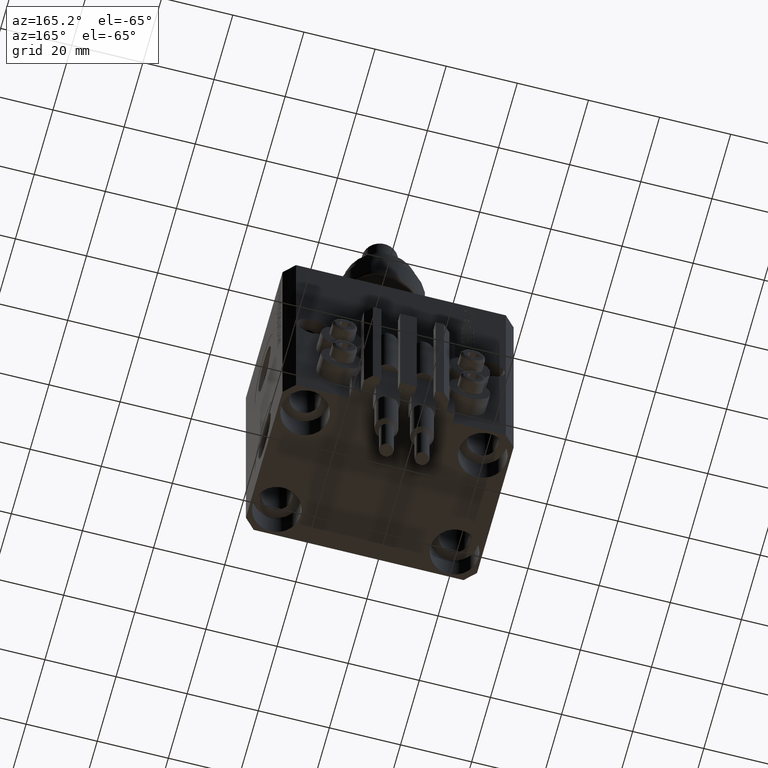
[diagram: clean part render]
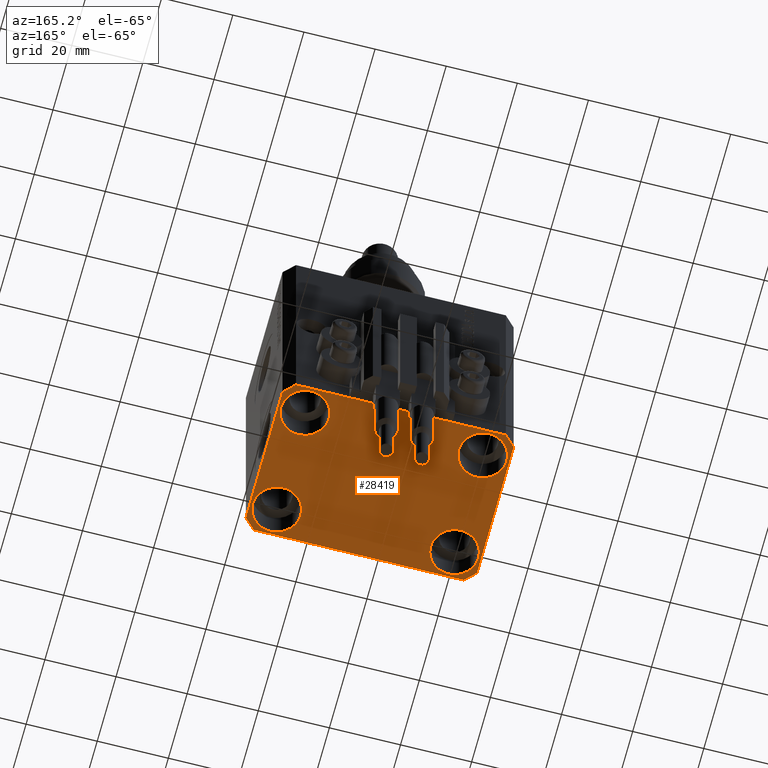
[diagram: same view with one face highlighted and labeled with its STEP entity id]
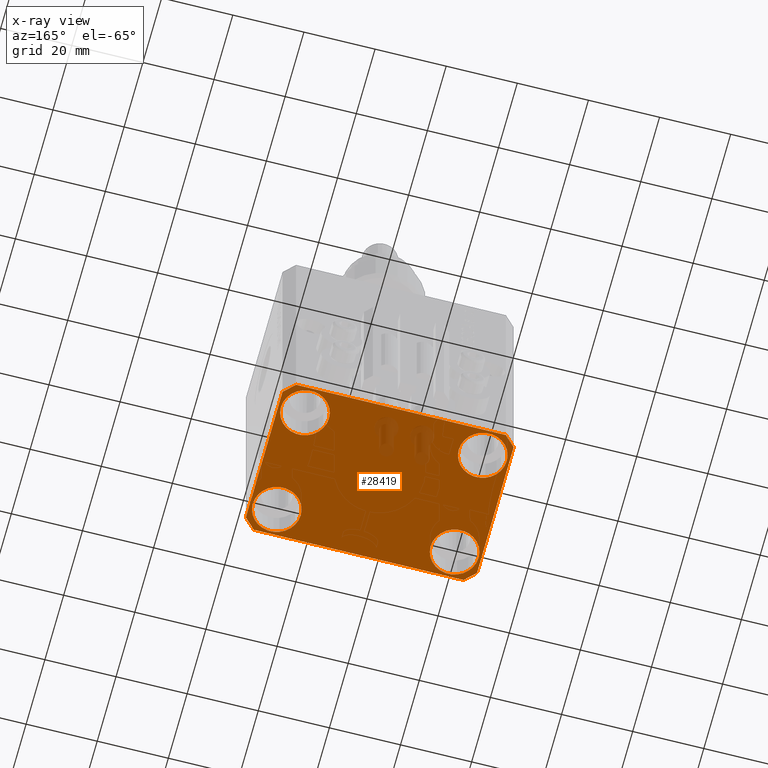
[diagram: x-ray of the same camera — body ghosted, the highlighted face saturated]
A machine part, auxiliary view. The second image highlights one B-rep face of the part: STEP entity #28419.
The next image is the same camera in x-ray: the body ghosted, the highlighted face saturated — about 5% of this face is hidden behind the body in this view.
In plain terms, the highlighted planar face has unit normal (0, 0, 1).
Its self-contained STEP definition (entity closure, byte-faithful):
#45 = CARTESIAN_POINT ( 'NONE',  ( 0.000000000000000000, 0.000000000000000000, -77.00000000000000000 ) ) ;
#546 = DIRECTION ( 'NONE',  ( 1.000000000000000000, 0.000000000000000000, -0.000000000000000000 ) ) ;
#956 = EDGE_CURVE ( 'NONE', #17662, #29281, #48823, .T. ) ;
#1086 = CARTESIAN_POINT ( 'NONE',  ( -32.49999999999650413, 19.49999999999949907, -77.00000000000000000 ) ) ;
#1094 = DIRECTION ( 'NONE',  ( -0.7071067811865474617, -0.7071067811865474617, 0.000000000000000000 ) ) ;
#1244 = EDGE_CURVE ( 'NONE', #9474, #32454, #38699, .T. ) ;
#1461 = CARTESIAN_POINT ( 'NONE',  ( -29.49999999999650413, 22.49999999999949907, -77.00000000000000000 ) ) ;
#1547 = AXIS2_PLACEMENT_3D ( 'NONE', #45, #20279, #546 ) ;
#1608 = CARTESIAN_POINT ( 'NONE',  ( -29.49999999999650413, 22.49999999999949907, -77.00000000000000000 ) ) ;
#2036 = CARTESIAN_POINT ( 'NONE',  ( 32.49999999999702993, 19.49999999999945999, -77.00000000000000000 ) ) ;
#2237 = DIRECTION ( 'NONE',  ( -0.000000000000000000, -0.000000000000000000, 1.000000000000000000 ) ) ;
#2881 = EDGE_CURVE ( 'NONE', #21394, #44038, #40609, .T. ) ;
#3050 = CARTESIAN_POINT ( 'NONE',  ( -32.49999999999650413, -19.49999999999949907, -77.00000000000000000 ) ) ;
#3189 = VERTEX_POINT ( 'NONE', #25179 ) ;
#3313 = LINE ( 'NONE', #6948, #11062 ) ;
#3574 = AXIS2_PLACEMENT_3D ( 'NONE', #35310, #32428, #12192 ) ;
#6428 = LINE ( 'NONE', #2036, #40658 ) ;
#6644 = DIRECTION ( 'NONE',  ( 1.000000000000000000, 0.000000000000000000, 0.000000000000000000 ) ) ;
#6838 = AXIS2_PLACEMENT_3D ( 'NONE', #41606, #33806, #33557 ) ;
#6948 = CARTESIAN_POINT ( 'NONE',  ( -32.49999999999650413, 19.49999999999949907, -77.00000000000000000 ) ) ;
#7407 = EDGE_CURVE ( 'NONE', #12128, #10575, #19665, .T. ) ;
#7562 = ORIENTED_EDGE ( 'NONE', *, *, #14547, .T. ) ;
#7670 = ORIENTED_EDGE ( 'NONE', *, *, #50550, .T. ) ;
#8112 = AXIS2_PLACEMENT_3D ( 'NONE', #10536, #2237, #6644 ) ;
#8657 = AXIS2_PLACEMENT_3D ( 'NONE', #15118, #32740, #48331 ) ;
#8911 = CARTESIAN_POINT ( 'NONE',  ( -32.49999999999650413, -19.49999999999949907, -77.00000000000000000 ) ) ;
#8948 = CARTESIAN_POINT ( 'NONE',  ( 29.49999999999707967, 22.49999999999951328, -77.00000000000000000 ) ) ;
#9474 = VERTEX_POINT ( 'NONE', #8948 ) ;
#10253 = CIRCLE ( 'NONE', #47578, 6.749999999958452790 ) ;
#10351 = EDGE_CURVE ( 'NONE', #44038, #21394, #20981, .T. ) ;
#10536 = CARTESIAN_POINT ( 'NONE',  ( -25.00000000000000355, -15.00000000000000000, -77.00000000000000000 ) ) ;
#10575 = VERTEX_POINT ( 'NONE', #49787 ) ;
#11018 = CARTESIAN_POINT ( 'NONE',  ( 32.49999999999702993, 19.49999999999945999, -77.00000000000000000 ) ) ;
#11028 = ORIENTED_EDGE ( 'NONE', *, *, #38486, .F. ) ;
#11062 = VECTOR ( 'NONE', #19147, 1000.000000000000000 ) ;
#11679 = DIRECTION ( 'NONE',  ( 1.000000000000000000, 1.176083712526788232E-16, 0.000000000000000000 ) ) ;
#11991 = FACE_BOUND ( 'NONE', #22053, .T. ) ;
#12118 = CARTESIAN_POINT ( 'NONE',  ( 31.74999999995845101, 15.00000000000000888, -77.00000000000000000 ) ) ;
#12128 = VERTEX_POINT ( 'NONE', #8911 ) ;
#12192 = DIRECTION ( 'NONE',  ( 1.000000000000000000, 0.000000000000000000, 0.000000000000000000 ) ) ;
#12490 = DIRECTION ( 'NONE',  ( -0.000000000000000000, -0.000000000000000000, 1.000000000000000000 ) ) ;
#13291 = LINE ( 'NONE', #1608, #47303 ) ;
#14547 = EDGE_CURVE ( 'NONE', #16539, #3189, #10253, .T. ) ;
#14671 = ORIENTED_EDGE ( 'NONE', *, *, #956, .T. ) ;
#14747 = CIRCLE ( 'NONE', #50413, 6.750000000041541881 ) ;
#14801 = CARTESIAN_POINT ( 'NONE',  ( 29.49999999999707967, 22.49999999999951328, -77.00000000000000000 ) ) ;
#14971 = CARTESIAN_POINT ( 'NONE',  ( -31.75000000004154899, -15.00000000000000000, -77.00000000000000000 ) ) ;
#15118 = CARTESIAN_POINT ( 'NONE',  ( -25.00000000000000355, 15.00000000000000000, -77.00000000000000000 ) ) ;
#15589 = DIRECTION ( 'NONE',  ( -1.000000000000000000, -2.352167425053553784E-16, 0.000000000000000000 ) ) ;
#15635 = DIRECTION ( 'NONE',  ( -0.000000000000000000, -0.000000000000000000, 1.000000000000000000 ) ) ;
#15919 = CARTESIAN_POINT ( 'NONE',  ( 32.49999999999651124, -19.49999999999949196, -77.00000000000000000 ) ) ;
#16399 = CARTESIAN_POINT ( 'NONE',  ( 24.99999999999999645, 15.00000000000000888, -77.00000000000000000 ) ) ;
#16539 = VERTEX_POINT ( 'NONE', #12118 ) ;
#16723 = VERTEX_POINT ( 'NONE', #11018 ) ;
#17582 = CIRCLE ( 'NONE', #6838, 6.749999999958452790 ) ;
#17662 = VERTEX_POINT ( 'NONE', #36468 ) ;
#18822 = ORIENTED_EDGE ( 'NONE', *, *, #2881, .T. ) ;
#18880 = DIRECTION ( 'NONE',  ( 0.7071067811865474617, -0.7071067811865474617, 0.000000000000000000 ) ) ;
#19075 = EDGE_LOOP ( 'NONE', ( #14671, #33818 ) ) ;
#19147 = DIRECTION ( 'NONE',  ( 0.000000000000000000, -1.000000000000000000, 0.000000000000000000 ) ) ;
#19665 = LINE ( 'NONE', #3050, #34964 ) ;
#19760 = DIRECTION ( 'NONE',  ( 0.7071067811865483499, 0.7071067811865466846, 0.000000000000000000 ) ) ;
#19764 = FACE_BOUND ( 'NONE', #19075, .T. ) ;
#20279 = DIRECTION ( 'NONE',  ( 0.000000000000000000, 0.000000000000000000, 1.000000000000000000 ) ) ;
#20981 = CIRCLE ( 'NONE', #3574, 6.749999999977465137 ) ;
#21394 = VERTEX_POINT ( 'NONE', #38897 ) ;
#22007 = EDGE_CURVE ( 'NONE', #43342, #16723, #43961, .T. ) ;
#22053 = EDGE_LOOP ( 'NONE', ( #39711, #7562 ) ) ;
#22143 = CARTESIAN_POINT ( 'NONE',  ( -25.00000000000000355, 15.00000000000000000, -77.00000000000000000 ) ) ;
#22336 = CARTESIAN_POINT ( 'NONE',  ( -18.24999999995845812, -15.00000000000000000, -77.00000000000000000 ) ) ;
#22402 = DIRECTION ( 'NONE',  ( -0.000000000000000000, -0.000000000000000000, 1.000000000000000000 ) ) ;
#22951 = VECTOR ( 'NONE', #47605, 1000.000000000000000 ) ;
#23359 = ORIENTED_EDGE ( 'NONE', *, *, #7407, .F. ) ;
#23573 = CIRCLE ( 'NONE', #8657, 6.750000000022533087 ) ;
#24202 = DIRECTION ( 'NONE',  ( 1.000000000000000000, 0.000000000000000000, 0.000000000000000000 ) ) ;
#24685 = FACE_BOUND ( 'NONE', #33231, .T. ) ;
#25179 = CARTESIAN_POINT ( 'NONE',  ( 18.25000000004154543, 15.00000000000000888, -77.00000000000000000 ) ) ;
#25534 = DIRECTION ( 'NONE',  ( 1.000000000000000000, 0.000000000000000000, 0.000000000000000000 ) ) ;
#25817 = CARTESIAN_POINT ( 'NONE',  ( 25.00000000000000355, -15.00000000000000000, -77.00000000000000000 ) ) ;
#26876 = EDGE_CURVE ( 'NONE', #31854, #41037, #33823, .T. ) ;
#27551 = VECTOR ( 'NONE', #19760, 1000.000000000000000 ) ;
#27833 = DIRECTION ( 'NONE',  ( 1.000000000000000000, 0.000000000000000000, 0.000000000000000000 ) ) ;
#27839 = PLANE ( 'NONE',  #1547 ) ;
#28419 = ADVANCED_FACE ( 'NONE', ( #24685, #39515, #11991, #19764, #35618 ), #27839, .F. ) ;
#29281 = VERTEX_POINT ( 'NONE', #40049 ) ;
#29724 = EDGE_LOOP ( 'NONE', ( #47713, #18822 ) ) ;
#30879 = CARTESIAN_POINT ( 'NONE',  ( 29.49999999999650413, -22.49999999999949196, -77.00000000000000000 ) ) ;
#31671 = LINE ( 'NONE', #47251, #34261 ) ;
#31854 = VERTEX_POINT ( 'NONE', #22336 ) ;
#32095 = EDGE_CURVE ( 'NONE', #16723, #9474, #6428, .T. ) ;
#32329 = EDGE_LOOP ( 'NONE', ( #38552, #37468, #47128, #11028, #40714, #23359, #48711, #41919 ) ) ;
#32428 = DIRECTION ( 'NONE',  ( -0.000000000000000000, -0.000000000000000000, 1.000000000000000000 ) ) ;
#32454 = VERTEX_POINT ( 'NONE', #1461 ) ;
#32471 = CARTESIAN_POINT ( 'NONE',  ( 29.49999999999650413, -22.49999999999949196, -77.00000000000000000 ) ) ;
#32740 = DIRECTION ( 'NONE',  ( -0.000000000000000000, -0.000000000000000000, 1.000000000000000000 ) ) ;
#32885 = VERTEX_POINT ( 'NONE', #1086 ) ;
#33231 = EDGE_LOOP ( 'NONE', ( #7670, #38342 ) ) ;
#33557 = DIRECTION ( 'NONE',  ( 1.000000000000000000, 0.000000000000000000, 0.000000000000000000 ) ) ;
#33603 = DIRECTION ( 'NONE',  ( 1.000000000000000000, 0.000000000000000000, 0.000000000000000000 ) ) ;
#33806 = DIRECTION ( 'NONE',  ( -0.000000000000000000, -0.000000000000000000, 1.000000000000000000 ) ) ;
#33818 = ORIENTED_EDGE ( 'NONE', *, *, #43890, .T. ) ;
#33823 = CIRCLE ( 'NONE', #8112, 6.750000000041541881 ) ;
#34240 = EDGE_CURVE ( 'NONE', #32454, #32885, #13291, .T. ) ;
#34261 = VECTOR ( 'NONE', #11679, 1000.000000000000000 ) ;
#34267 = CARTESIAN_POINT ( 'NONE',  ( 18.25000000002253842, -15.00000000000000000, -77.00000000000000000 ) ) ;
#34387 = CARTESIAN_POINT ( 'NONE',  ( 32.49999999999651124, -19.49999999999949196, -77.00000000000000000 ) ) ;
#34964 = VECTOR ( 'NONE', #18880, 1000.000000000000114 ) ;
#35310 = CARTESIAN_POINT ( 'NONE',  ( 25.00000000000000355, -15.00000000000000000, -77.00000000000000000 ) ) ;
#35579 = VECTOR ( 'NONE', #15589, 1000.000000000000000 ) ;
#35618 = FACE_OUTER_BOUND ( 'NONE', #32329, .T. ) ;
#36468 = CARTESIAN_POINT ( 'NONE',  ( -31.75000000002253842, 15.00000000000000000, -77.00000000000000000 ) ) ;
#36993 = DIRECTION ( 'NONE',  ( -0.000000000000000000, -0.000000000000000000, 1.000000000000000000 ) ) ;
#37468 = ORIENTED_EDGE ( 'NONE', *, *, #32095, .F. ) ;
#38111 = DIRECTION ( 'NONE',  ( -0.7071067811865352493, 0.7071067811865597852, 0.000000000000000000 ) ) ;
#38342 = ORIENTED_EDGE ( 'NONE', *, *, #26876, .T. ) ;
#38486 = EDGE_CURVE ( 'NONE', #39589, #43342, #48559, .T. ) ;
#38552 = ORIENTED_EDGE ( 'NONE', *, *, #1244, .F. ) ;
#38699 = LINE ( 'NONE', #14801, #35579 ) ;
#38897 = CARTESIAN_POINT ( 'NONE',  ( 31.74999999997746869, -15.00000000000000000, -77.00000000000000000 ) ) ;
#39225 = EDGE_CURVE ( 'NONE', #3189, #16539, #17582, .T. ) ;
#39515 = FACE_BOUND ( 'NONE', #29724, .T. ) ;
#39589 = VERTEX_POINT ( 'NONE', #30879 ) ;
#39711 = ORIENTED_EDGE ( 'NONE', *, *, #39225, .T. ) ;
#40049 = CARTESIAN_POINT ( 'NONE',  ( -18.24999999997747224, 15.00000000000000000, -77.00000000000000000 ) ) ;
#40609 = CIRCLE ( 'NONE', #46415, 6.749999999977465137 ) ;
#40658 = VECTOR ( 'NONE', #38111, 1000.000000000000000 ) ;
#40714 = ORIENTED_EDGE ( 'NONE', *, *, #41647, .F. ) ;
#41037 = VERTEX_POINT ( 'NONE', #14971 ) ;
#41606 = CARTESIAN_POINT ( 'NONE',  ( 24.99999999999999645, 15.00000000000000888, -77.00000000000000000 ) ) ;
#41647 = EDGE_CURVE ( 'NONE', #10575, #39589, #31671, .T. ) ;
#41919 = ORIENTED_EDGE ( 'NONE', *, *, #34240, .F. ) ;
#43342 = VERTEX_POINT ( 'NONE', #34387 ) ;
#43890 = EDGE_CURVE ( 'NONE', #29281, #17662, #23573, .T. ) ;
#43961 = LINE ( 'NONE', #15919, #22951 ) ;
#44038 = VERTEX_POINT ( 'NONE', #34267 ) ;
#44673 = AXIS2_PLACEMENT_3D ( 'NONE', #22143, #22402, #25534 ) ;
#45327 = EDGE_CURVE ( 'NONE', #32885, #12128, #3313, .T. ) ;
#46415 = AXIS2_PLACEMENT_3D ( 'NONE', #25817, #36993, #33603 ) ;
#47128 = ORIENTED_EDGE ( 'NONE', *, *, #22007, .F. ) ;
#47251 = CARTESIAN_POINT ( 'NONE',  ( -29.49999999999650413, -22.49999999999949907, -77.00000000000000000 ) ) ;
#47303 = VECTOR ( 'NONE', #1094, 1000.000000000000114 ) ;
#47558 = CARTESIAN_POINT ( 'NONE',  ( -25.00000000000000355, -15.00000000000000000, -77.00000000000000000 ) ) ;
#47578 = AXIS2_PLACEMENT_3D ( 'NONE', #16399, #15635, #24202 ) ;
#47605 = DIRECTION ( 'NONE',  ( 1.334402673828349134E-14, 1.000000000000000000, 0.000000000000000000 ) ) ;
#47713 = ORIENTED_EDGE ( 'NONE', *, *, #10351, .T. ) ;
#48331 = DIRECTION ( 'NONE',  ( 1.000000000000000000, 0.000000000000000000, 0.000000000000000000 ) ) ;
#48559 = LINE ( 'NONE', #32471, #27551 ) ;
#48711 = ORIENTED_EDGE ( 'NONE', *, *, #45327, .F. ) ;
#48823 = CIRCLE ( 'NONE', #44673, 6.750000000022533087 ) ;
#49787 = CARTESIAN_POINT ( 'NONE',  ( -29.49999999999650413, -22.49999999999949907, -77.00000000000000000 ) ) ;
#50413 = AXIS2_PLACEMENT_3D ( 'NONE', #47558, #12490, #27833 ) ;
#50550 = EDGE_CURVE ( 'NONE', #41037, #31854, #14747, .T. ) ;